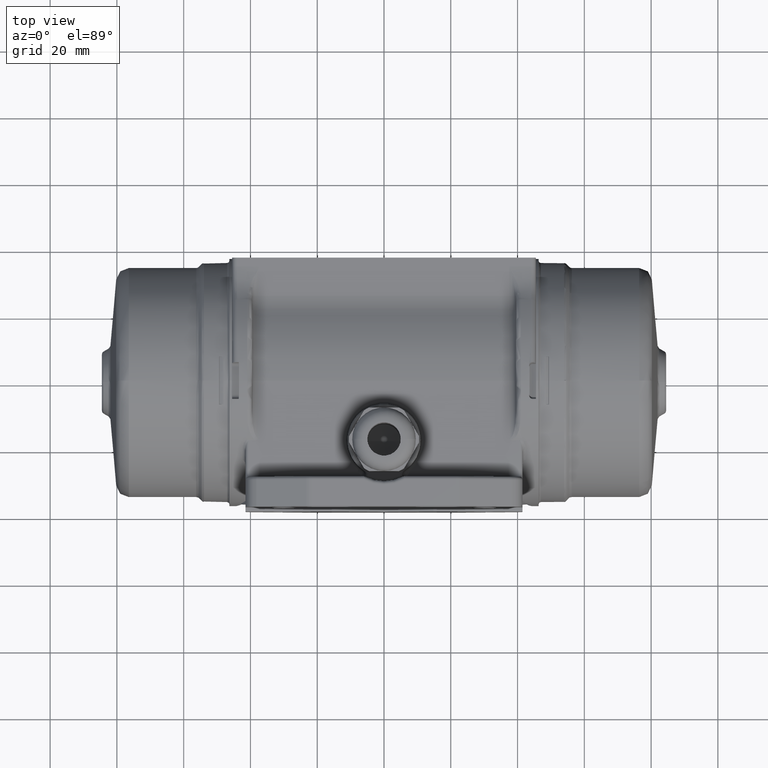
[diagram: clean part render]
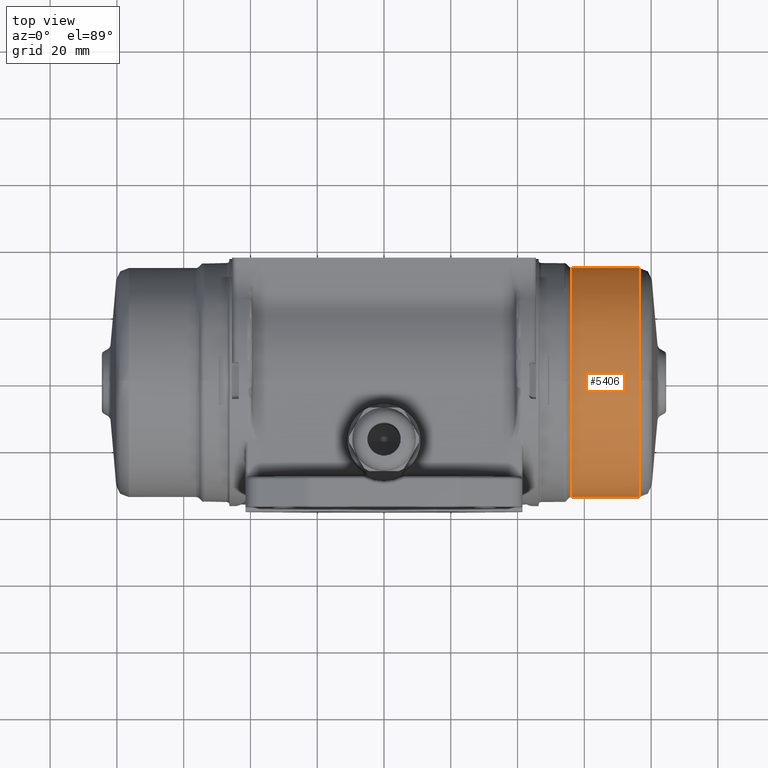
[diagram: same view with one face highlighted and labeled with its STEP entity id]
A machine part, top view. The second image highlights one B-rep face of the part: STEP entity #5406.
In plain terms, the highlighted cylindrical surface (partial cylindrical patch) has radius 34.3 mm, axis along (1, -0, 0).
Its self-contained STEP definition (entity closure, byte-faithful):
#1525 = CARTESIAN_POINT ( 'NONE',  ( 76.43075740382001000, 34.30000024409823600, -7.554320217214872700E-012 ) ) ;
#1846 = DIRECTION ( 'NONE',  ( 1.000000000000000000, -1.387778141171645900E-016, 1.636847791041760100E-032 ) ) ;
#1847 = VECTOR ( 'NONE', #1846, 1000.000000000000000 ) ;
#1848 = CARTESIAN_POINT ( 'NONE',  ( -40.76946596652844300, 34.30000000000326600, -7.558561286822282200E-015 ) ) ;
#1849 = LINE ( 'NONE', #1848, #1847 ) ;
#1851 = LINE ( 'NONE', #1899, #1898 ) ;
#1856 = CARTESIAN_POINT ( 'NONE',  ( 56.24558441227507200, -34.30000007679551300, 5.699778473794890200E-013 ) ) ;
#1897 = DIRECTION ( 'NONE',  ( 1.000000000000000000, -1.387778141171645900E-016, 1.636847791041760100E-032 ) ) ;
#1898 = VECTOR ( 'NONE', #1897, 1000.000000000000000 ) ;
#1899 = CARTESIAN_POINT ( 'NONE',  ( -40.76946596652845800, -34.30000000000322300, 4.734115304990920800E-015 ) ) ;
#1902 = CARTESIAN_POINT ( 'NONE',  ( 56.24558441227508600, 34.29999990728199300, -1.013008706883081800E-012 ) ) ;
#1903 = CARTESIAN_POINT ( 'NONE',  ( 76.43075740382002400, -34.29999974249743400, 9.758845912720698300E-012 ) ) ;
#5330 = VERTEX_POINT ( 'NONE', #12017 ) ;
#5331 = EDGE_CURVE ( 'NONE', #13587, #5407, #11938, .T. ) ;
#5333 = ORIENTED_EDGE ( 'NONE', *, *, #5331, .T. ) ;
#5334 = ORIENTED_EDGE ( 'NONE', *, *, #5354, .T. ) ;
#5342 = EDGE_LOOP ( 'NONE', ( #5409, #5334, #5408, #5411, #5333, #5393, #5395 ) ) ;
#5345 = VERTEX_POINT ( 'NONE', #12366 ) ;
#5354 = EDGE_CURVE ( 'NONE', #13578, #5345, #12917, .T. ) ;
#5392 = EDGE_CURVE ( 'NONE', #5407, #5330, #14797, .T. ) ;
#5393 = ORIENTED_EDGE ( 'NONE', *, *, #5392, .T. ) ;
#5394 = EDGE_CURVE ( 'NONE', #5330, #13469, #14842, .T. ) ;
#5395 = ORIENTED_EDGE ( 'NONE', *, *, #5394, .T. ) ;
#5401 = EDGE_CURVE ( 'NONE', #5345, #13579, #14905, .T. ) ;
#5406 = ADVANCED_FACE ( 'NONE', ( #14579 ), #14931, .T. ) ;
#5407 = VERTEX_POINT ( 'NONE', #14928 ) ;
#5408 = ORIENTED_EDGE ( 'NONE', *, *, #5401, .T. ) ;
#5409 = ORIENTED_EDGE ( 'NONE', *, *, #13570, .F. ) ;
#5411 = ORIENTED_EDGE ( 'NONE', *, *, #13580, .T. ) ;
#11734 = CARTESIAN_POINT ( 'NONE',  ( 76.43075740381993900, -27.27219155744911600, 20.92264986176834900 ) ) ;
#11736 = CARTESIAN_POINT ( 'NONE',  ( 76.43075740381998200, -20.92264986176663700, 27.27219155745044800 ) ) ;
#11737 = CARTESIAN_POINT ( 'NONE',  ( 76.43075740381993900, -22.66635754492047300, 25.84116764448116400 ) ) ;
#11738 = CARTESIAN_POINT ( 'NONE',  ( 76.43075740381993900, -29.76662384650935800, 17.18946812338224800 ) ) ;
#11743 = CARTESIAN_POINT ( 'NONE',  ( 76.43075740381993900, -25.84116764447974300, 22.66635754492211400 ) ) ;
#11938 = B_SPLINE_CURVE_WITH_KNOTS ( 'NONE', 3,
 ( #12306, #12305, #12312, #12304, #12303, #12302, #11738, #11734, #11743, #11737, #11736, #11966, #11965, #11964, #11963, #22769, #12338, #12337 ),
 .UNSPECIFIED., .F., .F.,
 ( 4, 2, 2, 2, 2, 2, 2, 2, 4 ),
 ( 0.4999162934352462400, 0.5624267567558404200, 0.6249372200764347100, 0.6874476833970288900, 0.7499581467176230600, 0.8124686100382173500, 0.8749790733588115300, 0.9374895366794058200, 1.000000000000000000 ),
 .UNSPECIFIED. ) ;
#11963 = CARTESIAN_POINT ( 'NONE',  ( 76.43075740381993900, -8.893392099863479700, 33.20297104992924600 ) ) ;
#11964 = CARTESIAN_POINT ( 'NONE',  ( 76.43075740381993900, -11.05199708182359700, 32.54816538743338600 ) ) ;
#11965 = CARTESIAN_POINT ( 'NONE',  ( 76.43075740381992500, -15.20008637842310900, 30.82997054284727100 ) ) ;
#11966 = CARTESIAN_POINT ( 'NONE',  ( 76.43075740381998200, -17.18946812338037200, 29.76662384651044800 ) ) ;
#12017 = CARTESIAN_POINT ( 'NONE',  ( 76.43075740382009500, 0.01803685388854980200, 34.29999525761084600 ) ) ;
#12302 = CARTESIAN_POINT ( 'NONE',  ( 76.43075740381993900, -30.82997054284630800, 15.20008637842504800 ) ) ;
#12303 = CARTESIAN_POINT ( 'NONE',  ( 76.43075740381993900, -32.54816538743269700, 11.05199708182564300 ) ) ;
#12304 = CARTESIAN_POINT ( 'NONE',  ( 76.43075740381992500, -33.20297104992869200, 8.893392099865565100 ) ) ;
#12305 = CARTESIAN_POINT ( 'NONE',  ( 76.43075740381993900, -34.30000000000310200, 2.244929750380036700 ) ) ;
#12306 = CARTESIAN_POINT ( 'NONE',  ( 76.43075740382002400, -34.29999974249743400, 9.758845912720698300E-012 ) ) ;
#12312 = CARTESIAN_POINT ( 'NONE',  ( 76.43075740381993900, -34.07889918573852800, 4.489803990445875700 ) ) ;
#12337 = CARTESIAN_POINT ( 'NONE',  ( 76.43075740382009500, 3.006701062306989700E-014, 34.29999999684154900 ) ) ;
#12338 = CARTESIAN_POINT ( 'NONE',  ( 76.43075740381995300, -2.244929750377874000, 34.30000000000325100 ) ) ;
#12366 = CARTESIAN_POINT ( 'NONE',  ( 56.24558441227510000, 0.009018536425270290100, 34.29999891826510300 ) ) ;
#12917 = B_SPLINE_CURVE_WITH_KNOTS ( 'NONE', 3,
 ( #12938, #12937, #12936, #12935, #12986, #12985, #12984, #12983, #12982, #12981, #12980, #12979, #12978, #12977, #12976, #12975, #12974, #12973 ),
 .UNSPECIFIED., .F., .F.,
 ( 4, 2, 2, 2, 2, 2, 2, 2, 4 ),
 ( 0.0000000000000000000, 0.03124476915210000500, 0.06248953830420001000, 0.09373430745629998700, 0.1249790766083999600, 0.1562238457604999400, 0.1874686149125999200, 0.2187133840646998700, 0.2499581532167998200 ),
 .UNSPECIFIED. ) ;
#12935 = CARTESIAN_POINT ( 'NONE',  ( 56.24558441227507200, 33.20333662309633400, 8.891932278972582500 ) ) ;
#12936 = CARTESIAN_POINT ( 'NONE',  ( 56.24558441227506500, 34.07897343353020900, 4.489052492144354600 ) ) ;
#12937 = CARTESIAN_POINT ( 'NONE',  ( 56.24558441227508600, 34.30000000000325100, 2.244553978023732900 ) ) ;
#12938 = CARTESIAN_POINT ( 'NONE',  ( 56.24558441227508600, 34.29999990728199300, -1.013008706883081800E-012 ) ) ;
#12973 = CARTESIAN_POINT ( 'NONE',  ( 56.24558441227510000, 0.009018536425270290100, 34.29999891826510300 ) ) ;
#12974 = CARTESIAN_POINT ( 'NONE',  ( 56.24558441227505800, 2.253572436835723300, 34.29940865135168300 ) ) ;
#12975 = CARTESIAN_POINT ( 'NONE',  ( 56.24558441227508600, 4.498012758616034100, 34.07779194407719100 ) ) ;
#12976 = CARTESIAN_POINT ( 'NONE',  ( 56.24558441227506500, 8.900662161111350600, 33.20099750992800800 ) ) ;
#12977 = CARTESIAN_POINT ( 'NONE',  ( 56.24558441227503600, 11.05876245044864500, 32.54584144902435800 ) ) ;
#12978 = CARTESIAN_POINT ( 'NONE',  ( 56.24558441227504300, 15.20581856121445300, 30.82711638223579700 ) ) ;
#12979 = CARTESIAN_POINT ( 'NONE',  ( 56.24558441227506500, 17.19467190708642700, 29.76358984679329500 ) ) ;
#12980 = CARTESIAN_POINT ( 'NONE',  ( 56.24558441227506500, 20.92681886222221600, 27.26896174899633600 ) ) ;
#12981 = CARTESIAN_POINT ( 'NONE',  ( 56.24558441227505800, 22.67002024851482700, 25.83792182998493900 ) ) ;
#12982 = CARTESIAN_POINT ( 'NONE',  ( 56.24558441227506500, 25.84388159000313900, 22.66322587193583300 ) ) ;
#12983 = CARTESIAN_POINT ( 'NONE',  ( 56.24558441227506500, 27.27446311770748000, 20.91964828101319900 ) ) ;
#12984 = CARTESIAN_POINT ( 'NONE',  ( 56.24558441227506500, 29.76810983180603600, 17.18684553959852600 ) ) ;
#12985 = CARTESIAN_POINT ( 'NONE',  ( 56.24558441227505800, 30.83111339910754400, 15.19771262828246900 ) ) ;
#12986 = CARTESIAN_POINT ( 'NONE',  ( 56.24558441227505800, 32.54874801650117200, 11.05020475460959900 ) ) ;
#13469 = VERTEX_POINT ( 'NONE', #1525 ) ;
#13570 = EDGE_CURVE ( 'NONE', #13578, #13469, #1849, .T. ) ;
#13578 = VERTEX_POINT ( 'NONE', #1902 ) ;
#13579 = VERTEX_POINT ( 'NONE', #1856 ) ;
#13580 = EDGE_CURVE ( 'NONE', #13579, #13587, #1851, .T. ) ;
#13587 = VERTEX_POINT ( 'NONE', #1903 ) ;
#14267 = CARTESIAN_POINT ( 'NONE',  ( 56.24558441227503600, -32.54758266337201900, 11.05378938018992800 ) ) ;
#14268 = CARTESIAN_POINT ( 'NONE',  ( 56.24558441227506500, -33.20260541667024500, 8.894851906329535000 ) ) ;
#14269 = CARTESIAN_POINT ( 'NONE',  ( 56.24558441227505800, -30.82882750773575600, 15.20246004398332800 ) ) ;
#14469 = CARTESIAN_POINT ( 'NONE',  ( 56.24558441227504300, -29.76513763344248900, 17.19209058121959500 ) ) ;
#14470 = CARTESIAN_POINT ( 'NONE',  ( 56.24558441227505100, -27.26991967044443400, 20.92565119794702300 ) ) ;
#14520 = CARTESIAN_POINT ( 'NONE',  ( 56.24558441227507200, -34.30000007679551300, 5.699778473794890200E-013 ) ) ;
#14547 = CARTESIAN_POINT ( 'NONE',  ( 56.24558441227506500, -25.83845332220388300, 22.66948889602333500 ) ) ;
#14579 = FACE_OUTER_BOUND ( 'NONE', #5342, .T. ) ;
#14583 = CARTESIAN_POINT ( 'NONE',  ( 56.24558441227505800, -34.30000000000324400, 2.245305522732146100 ) ) ;
#14584 = CARTESIAN_POINT ( 'NONE',  ( 56.24558441227506500, -34.07882492536135300, 4.490555488712376900 ) ) ;
#14782 = DIRECTION ( 'NONE',  ( 0.0000000000000000000, -1.179611963664229600E-016, -1.000000000000000000 ) ) ;
#14783 = DIRECTION ( 'NONE',  ( -1.000000000000000000, -5.766495800001249700E-022, -1.037842000000000100E-018 ) ) ;
#14784 = CARTESIAN_POINT ( 'NONE',  ( 76.43075740382009500, 8.944842204785980400E-020, 7.429153428379859200E-020 ) ) ;
#14785 = AXIS2_PLACEMENT_3D ( 'NONE', #14784, #14783, #14782 ) ;
#14797 = CIRCLE ( 'NONE', #14785, 34.30000000000330100 ) ;
#14816 = CARTESIAN_POINT ( 'NONE',  ( 76.43075740382001000, 34.30000024409823600, -7.554320217214872700E-012 ) ) ;
#14817 = CARTESIAN_POINT ( 'NONE',  ( 76.43075740381993900, 34.30000000000331500, 2.244178214763529400 ) ) ;
#14818 = CARTESIAN_POINT ( 'NONE',  ( 76.43075740381995300, 34.07904766693912500, 4.488301012001903300 ) ) ;
#14819 = CARTESIAN_POINT ( 'NONE',  ( 76.43075740381992500, 33.20370212732529300, 8.890472478991243900 ) ) ;
#14820 = CARTESIAN_POINT ( 'NONE',  ( 76.43075740381998200, 32.54933053647626200, 11.04841244193302400 ) ) ;
#14821 = CARTESIAN_POINT ( 'NONE',  ( 76.43075740381998200, 30.83225604885636900, 15.19533885102950100 ) ) ;
#14822 = CARTESIAN_POINT ( 'NONE',  ( 76.43075740381995300, 29.76959555336179600, 17.18422289337254200 ) ) ;
#14823 = CARTESIAN_POINT ( 'NONE',  ( 76.43075740381995300, 27.27673429622249700, 20.91664652837846500 ) ) ;
#14824 = CARTESIAN_POINT ( 'NONE',  ( 76.43075740381996800, 25.84659509305978300, 22.66009395292228100 ) ) ;
#14825 = CARTESIAN_POINT ( 'NONE',  ( 76.43075740381995300, 22.67368240179041500, 25.83467557765312600 ) ) ;
#14826 = CARTESIAN_POINT ( 'NONE',  ( 76.43075740381996800, 20.93098726529204300, 27.26573138501934000 ) ) ;
#14827 = CARTESIAN_POINT ( 'NONE',  ( 76.43075740381996800, 17.19987503188610100, 29.76055501410126100 ) ) ;
#14828 = CARTESIAN_POINT ( 'NONE',  ( 76.43075740381993900, 15.21155007071393200, 30.82426122887634200 ) ) ;
#14829 = CARTESIAN_POINT ( 'NONE',  ( 76.43075740381993900, 11.06552716855631900, 32.54351616438809500 ) ) ;
#14830 = CARTESIAN_POINT ( 'NONE',  ( 76.43075740381995300, 8.907931609071473700, 33.19902243000466800 ) ) ;
#14839 = CARTESIAN_POINT ( 'NONE',  ( 76.43075740381992500, 4.506221056263629300, 34.07668275598335600 ) ) ;
#14840 = CARTESIAN_POINT ( 'NONE',  ( 76.43075740381995300, 2.262214758368067600, 34.29881514348372900 ) ) ;
#14841 = CARTESIAN_POINT ( 'NONE',  ( 76.43075740382009500, 0.01803685388854980200, 34.29999525761084600 ) ) ;
#14842 = B_SPLINE_CURVE_WITH_KNOTS ( 'NONE', 3,
 ( #14841, #14840, #14839, #14830, #14829, #14828, #14827, #14826, #14825, #14824, #14823, #14822, #14821, #14820, #14819, #14818, #14817, #14816 ),
 .UNSPECIFIED., .F., .F.,
 ( 4, 2, 2, 2, 2, 2, 2, 2, 4 ),
 ( 0.0000000000000000000, 0.06248953667940461400, 0.1249790733588092300, 0.1874686100382137700, 0.2499581467176183500, 0.3124476833970228900, 0.3749372200764274900, 0.4374267567558320400, 0.4999162934352366900 ),
 .UNSPECIFIED. ) ;
#14874 = CARTESIAN_POINT ( 'NONE',  ( 56.24558441227506500, -22.66269437971701000, 25.84441294249449700 ) ) ;
#14875 = CARTESIAN_POINT ( 'NONE',  ( 56.24558441227505800, -20.91848036491121100, 27.27542073210710800 ) ) ;
#14876 = CARTESIAN_POINT ( 'NONE',  ( 56.24558441227506500, -17.18426380685986700, 29.76965693969079400 ) ) ;
#14877 = CARTESIAN_POINT ( 'NONE',  ( 56.24558441227505800, -15.19435366125948600, 30.83282364148967500 ) ) ;
#14878 = CARTESIAN_POINT ( 'NONE',  ( 56.24558441227503600, -11.04523122670355700, 32.55048792321378700 ) ) ;
#14879 = CARTESIAN_POINT ( 'NONE',  ( 56.24558441227505100, -8.886121601623134600, 33.20494300208630300 ) ) ;
#14880 = CARTESIAN_POINT ( 'NONE',  ( 56.24558441227505100, -4.481594950895783700, 34.08000445403051500 ) ) ;
#14881 = CARTESIAN_POINT ( 'NONE',  ( 56.24558441227506500, -2.236286908722185700, 34.30058917500560500 ) ) ;
#14882 = CARTESIAN_POINT ( 'NONE',  ( 56.24558441227510000, 0.009018536425270290100, 34.29999891826510300 ) ) ;
#14905 = B_SPLINE_CURVE_WITH_KNOTS ( 'NONE', 3,
 ( #14882, #14881, #14880, #14879, #14878, #14877, #14876, #14875, #14874, #14547, #14470, #14469, #14269, #14267, #14268, #14584, #14583, #14520 ),
 .UNSPECIFIED., .F., .F.,
 ( 4, 2, 2, 2, 2, 2, 2, 2, 4 ),
 ( 0.2499581532168009800, 0.2812133840647008700, 0.3124686149126007000, 0.3437238457605005800, 0.3749790766084004600, 0.4062343074563003500, 0.4374895383042002300, 0.4687447691521000600, 0.5000000000000000000 ),
 .UNSPECIFIED. ) ;
#14921 = DIRECTION ( 'NONE',  ( -2.023001138165181400E-016, -1.000000000000000000, 1.179611963664230100E-016 ) ) ;
#14922 = DIRECTION ( 'NONE',  ( 1.000000000000000000, -1.387778141171645900E-016, 1.636847791041760100E-032 ) ) ;
#14923 = CARTESIAN_POINT ( 'NONE',  ( -40.76946596652845000, 1.790487918493484600E-014, 6.880462696222290000E-016 ) ) ;
#14924 = AXIS2_PLACEMENT_3D ( 'NONE', #14923, #14922, #14921 ) ;
#14928 = CARTESIAN_POINT ( 'NONE',  ( 76.43075740382009500, 3.006701062306989700E-014, 34.29999999684154900 ) ) ;
#14931 = CYLINDRICAL_SURFACE ( 'NONE', #14924, 34.30000000000324400 ) ;
#22769 = CARTESIAN_POINT ( 'NONE',  ( 76.43075740381995300, -4.489803990443738800, 34.07889918573880500 ) ) ;